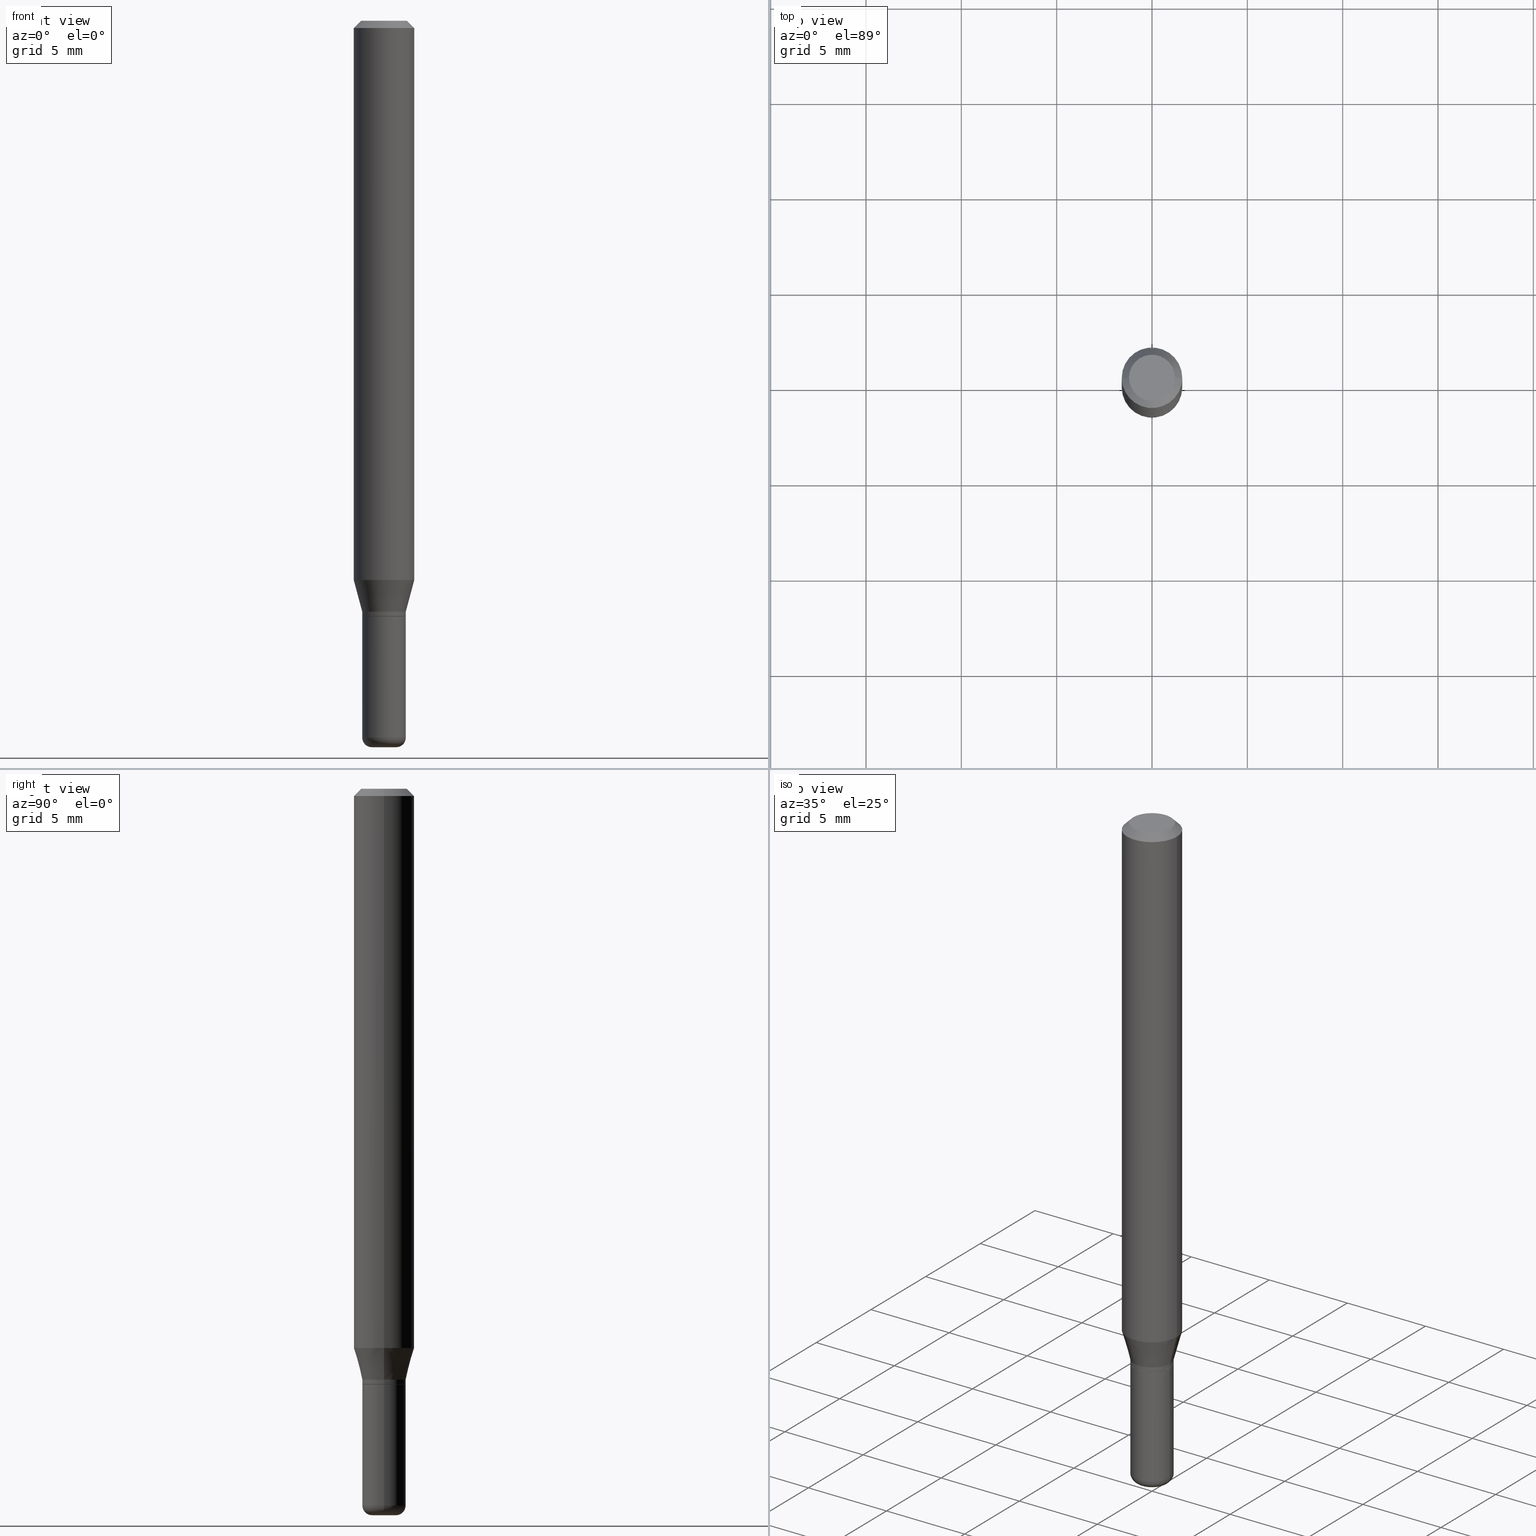
[diagram: canonical four-view strip — front | top / right | iso, engineering-drawing reading convention]
A machine part, canonical four-view strip (front | top / right | iso — engineering-drawing reading convention). The complete STEP part file that produces these views, byte-faithful:
ISO-10303-21;
HEADER;
FILE_DESCRIPTION (( 'STEP AP203' ),
    '1' );
FILE_NAME ('08723.STEP',
    '2024-02-29T20:36:38',
    ( '' ),
    ( '' ),
    'SwSTEP 2.0',
    'SolidWorks 2023',
    '' );
FILE_SCHEMA (( 'CONFIG_CONTROL_DESIGN' ));
ENDSEC;

DATA;
#1 = ORIENTED_EDGE ( 'NONE', *, *, #268, .T. ) ;
#2 = DIRECTION ( 'NONE',  ( 1.000000000000000000, -6.982962677686263555E-15, 0.000000000000000000 ) ) ;
#3 = DIRECTION ( 'NONE',  ( -2.445468806185136597E-29, 3.491481338843145583E-15, 1.000000000000000000 ) ) ;
#4 = EDGE_LOOP ( 'NONE', ( #180, #140, #331, #493 ) ) ;
#5 = CIRCLE ( 'NONE', #36, 0.02000000000000003511 ) ;
#6 = DIRECTION ( 'NONE',  ( -0.7071067811865479058, 2.468850131082261005E-15, -0.7071067811865471286 ) ) ;
#7 = AXIS2_PLACEMENT_3D ( 'NONE', #65, #295, #338 ) ;
#8 = EDGE_CURVE ( 'NONE', #347, #497, #459, .T. ) ;
#9 = EDGE_LOOP ( 'NONE', ( #74, #271 ) ) ;
#10 = CARTESIAN_POINT ( 'NONE',  ( 0.000000000000000000, 0.000000000000000000, 0.000000000000000000 ) ) ;
#11 = ORIENTED_EDGE ( 'NONE', *, *, #464, .F. ) ;
#12 = FACE_OUTER_BOUND ( 'NONE', #324, .T. ) ;
#13 = CARTESIAN_POINT ( 'NONE',  ( 2.823756201468231071E-29, -4.031575482759416467E-15, -1.154689110867544777 ) ) ;
#14 = CIRCLE ( 'NONE', #77, 0.04750000000000000749 ) ;
#15 = DIRECTION ( 'NONE',  ( -2.438088387897960049E-29, 3.491481338843145188E-15, 1.000000000000000000 ) ) ;
#16 = DIRECTION ( 'NONE',  ( 1.000000000000000000, -6.982962677686276177E-15, 0.000000000000000000 ) ) ;
#17 = ORIENTED_EDGE ( 'NONE', *, *, #371, .T. ) ;
#18 = LINE ( 'NONE', #21, #221 ) ;
#19 = VECTOR ( 'NONE', #89, 39.37007874015748143 ) ;
#20 = DIRECTION ( 'NONE',  ( -0.7071067811864267805, 7.493145998869918709E-15, 0.7071067811866682540 ) ) ;
#21 = CARTESIAN_POINT ( 'NONE',  ( -0.06250000000000000000, 4.440892098500626162E-16, -3.074334431409316114E-30 ) ) ;
#22 = EDGE_CURVE ( 'NONE', #23, #188, #319, .T. ) ;
#23 = VERTEX_POINT ( 'NONE', #480 ) ;
#24 = DIRECTION ( 'NONE',  ( 0.000000000000000000, 0.000000000000000000, 1.000000000000000000 ) ) ;
#25 = AXIS2_PLACEMENT_3D ( 'NONE', #273, #265, #429 ) ;
#26 = VECTOR ( 'NONE', #132, 39.37007874015748143 ) ;
#27 = PERSON_AND_ORGANIZATION ( #299, #396 ) ;
#28 = LINE ( 'NONE', #469, #150 ) ;
#29 = ADVANCED_FACE ( 'NONE', ( #125 ), #304, .T. ) ;
#30 = PERSON_AND_ORGANIZATION ( #299, #396 ) ;
#31 = DIRECTION ( 'NONE',  ( 1.000000000000000000, -6.982962677686267499E-15, 4.876176775795935793E-29 ) ) ;
#32 = EDGE_CURVE ( 'NONE', #60, #497, #388, .T. ) ;
#33 = EDGE_LOOP ( 'NONE', ( #102, #239, #453, #138 ) ) ;
#34 = APPROVAL_ROLE ( '' ) ;
#35 = CARTESIAN_POINT ( 'NONE',  ( 3.007926631607718216E-29, -4.294522046777069173E-15, -1.230000000000000204 ) ) ;
#36 = AXIS2_PLACEMENT_3D ( 'NONE', #39, #473, #68 ) ;
#37 = PERSON_AND_ORGANIZATION_ROLE ( 'design_owner' ) ;
#38 = VECTOR ( 'NONE', #6, 39.37007874015748143 ) ;
#39 = CARTESIAN_POINT ( 'NONE',  ( 0.02499999999999999792, -5.341966448430011546E-15, -1.479999999999999982 ) ) ;
#40 = DIRECTION ( 'NONE',  ( -2.445468806185136597E-29, 3.491481338843145583E-15, 1.000000000000000000 ) ) ;
#41 = ORIENTED_EDGE ( 'NONE', *, *, #86, .F. ) ;
#42 = FACE_OUTER_BOUND ( 'NONE', #402, .T. ) ;
#43 = EDGE_CURVE ( 'NONE', #470, #243, #5, .T. ) ;
#44 = VERTEX_POINT ( 'NONE', #76 ) ;
#45 = ORIENTED_EDGE ( 'NONE', *, *, #279, .F. ) ;
#46 = CIRCLE ( 'NONE', #220, 0.04499999999999999833 ) ;
#47 = DIRECTION ( 'NONE',  ( 1.000000000000000000, -6.982962677686262766E-15, 0.000000000000000000 ) ) ;
#48 = CIRCLE ( 'NONE', #139, 0.06250000000000000000 ) ;
#49 =( GEOMETRIC_REPRESENTATION_CONTEXT ( 3 ) GLOBAL_UNCERTAINTY_ASSIGNED_CONTEXT ( ( #500 ) ) GLOBAL_UNIT_ASSIGNED_CONTEXT ( ( #462, #196, #67 ) ) REPRESENTATION_CONTEXT ( 'NONE', 'WORKASPACE' ) );
#50 = EDGE_LOOP ( 'NONE', ( #476, #118, #17, #241 ) ) ;
#51 = CC_DESIGN_PERSON_AND_ORGANIZATION_ASSIGNMENT ( #70, #72, ( #517 ) ) ;
#52 = CARTESIAN_POINT ( 'NONE',  ( 3.668203209277632395E-31, -5.237222008264614861E-17, -0.01499999999999970281 ) ) ;
#53 = CARTESIAN_POINT ( 'NONE',  ( 0.04500000000000003303, -5.481625701983737354E-15, -1.479999999999999982 ) ) ;
#54 = DIRECTION ( 'NONE',  ( -2.445468806185136597E-29, 3.491481338843145583E-15, 1.000000000000000000 ) ) ;
#55 = AXIS2_PLACEMENT_3D ( 'NONE', #339, #492, #104 ) ;
#56 = APPROVAL_PERSON_ORGANIZATION ( #190, #450, #113 ) ;
#57 = CARTESIAN_POINT ( 'NONE',  ( 2.983471943545866670E-29, -4.259607233388637524E-15, -1.220000000000000195 ) ) ;
#58 = EDGE_LOOP ( 'NONE', ( #485, #475, #84, #230 ) ) ;
#59 = DIRECTION ( 'NONE',  ( 0.2588190451025206285, 1.565188264969627095E-15, 0.9659258262890682012 ) ) ;
#60 = VERTEX_POINT ( 'NONE', #226 ) ;
#61 = LENGTH_MEASURE_WITH_UNIT ( LENGTH_MEASURE( 0.02539999999999999897 ), #496 );
#62 = CONICAL_SURFACE ( 'NONE', #177, 0.04499999999999999833, 0.2617993877991493523 ) ;
#63 = CARTESIAN_POINT ( 'NONE',  ( 3.668203209277632395E-31, -5.237222008264614861E-17, -0.01499999999999970281 ) ) ;
#64 = EDGE_CURVE ( 'NONE', #79, #192, #28, .T. ) ;
#65 = CARTESIAN_POINT ( 'NONE',  ( 3.668203209277632395E-31, -5.237222008264614861E-17, -0.01499999999999970281 ) ) ;
#66 = ORIENTED_EDGE ( 'NONE', *, *, #64, .F. ) ;
#67 =( NAMED_UNIT ( * ) SI_UNIT ( $, .STERADIAN. ) SOLID_ANGLE_UNIT ( ) );
#68 = DIRECTION ( 'NONE',  ( 1.000000000000000000, -6.982962677686272233E-15, 0.000000000000000000 ) ) ;
#69 = AXIS2_PLACEMENT_3D ( 'NONE', #422, #447, #411 ) ;
#70 = PERSON_AND_ORGANIZATION ( #299, #396 ) ;
#71 = CARTESIAN_POINT ( 'NONE',  ( 3.006703897204625414E-29, -4.292776306107646881E-15, -1.229500000000000037 ) ) ;
#72 = PERSON_AND_ORGANIZATION_ROLE ( 'design_supplier' ) ;
#73 = CARTESIAN_POINT ( 'NONE',  ( 3.007926631607718216E-29, -4.294522046777069173E-15, -1.230000000000000204 ) ) ;
#74 = ORIENTED_EDGE ( 'NONE', *, *, #202, .T. ) ;
#75 = VERTEX_POINT ( 'NONE', #397 ) ;
#76 = CARTESIAN_POINT ( 'NONE',  ( -0.04500000000000001221, -3.973032075015602302E-15, -1.229500000000000037 ) ) ;
#77 = AXIS2_PLACEMENT_3D ( 'NONE', #96, #446, #87 ) ;
#78 = ORIENTED_EDGE ( 'NONE', *, *, #296, .F. ) ;
#79 = VERTEX_POINT ( 'NONE', #314 ) ;
#80 = PERSON_AND_ORGANIZATION_ROLE ( 'classification_officer' ) ;
#81 = EDGE_CURVE ( 'NONE', #303, #192, #46, .T. ) ;
#82 = DIRECTION ( 'NONE',  ( -2.445468806185136597E-29, 3.491481338843145583E-15, 1.000000000000000000 ) ) ;
#83 = APPLICATION_CONTEXT ( 'configuration controlled 3d designs of mechanical parts and assemblies' ) ;
#84 = ORIENTED_EDGE ( 'NONE', *, *, #172, .F. ) ;
#85 = ORIENTED_EDGE ( 'NONE', *, *, #32, .T. ) ;
#86 = EDGE_CURVE ( 'NONE', #369, #188, #292, .T. ) ;
#87 = DIRECTION ( 'NONE',  ( 1.000000000000000000, -6.982962677686266711E-15, 4.852736867747365086E-29 ) ) ;
#88 = EDGE_LOOP ( 'NONE', ( #103, #214, #318, #41 ) ) ;
#89 = DIRECTION ( 'NONE',  ( -2.445468806185136877E-29, 3.491481338843145188E-15, 1.000000000000000000 ) ) ;
#90 = CC_DESIGN_PERSON_AND_ORGANIZATION_ASSIGNMENT ( #115, #425, ( #517 ) ) ;
#91 = ORIENTED_EDGE ( 'NONE', *, *, #101, .T. ) ;
#92 = DIMENSIONAL_EXPONENTS ( 1.000000000000000000, 0.000000000000000000, 0.000000000000000000, 0.000000000000000000, 0.000000000000000000, 0.000000000000000000, 0.000000000000000000 ) ;
#93 = CARTESIAN_POINT ( 'NONE',  ( 3.668203209277704895E-29, -5.237222008264718177E-15, -1.500000000000000222 ) ) ;
#94 = AXIS2_PLACEMENT_3D ( 'NONE', #374, #301, #380 ) ;
#95 = ADVANCED_FACE ( 'NONE', ( #187 ), #350, .T. ) ;
#96 = CARTESIAN_POINT ( 'NONE',  ( -6.680649051745406845E-45, 9.538196290434862081E-31, 2.731847993664263218E-16 ) ) ;
#97 = DIRECTION ( 'NONE',  ( 1.000000000000000000, -6.982962677686266711E-15, 0.000000000000000000 ) ) ;
#98 = FACE_OUTER_BOUND ( 'NONE', #123, .T. ) ;
#99 = AXIS2_PLACEMENT_3D ( 'NONE', #277, #199, #189 ) ;
#100 = DIRECTION ( 'NONE',  ( -2.445468806185136877E-29, 3.491481338843145188E-15, 1.000000000000000000 ) ) ;
#101 = EDGE_CURVE ( 'NONE', #79, #243, #300, .T. ) ;
#102 = ORIENTED_EDGE ( 'NONE', *, *, #263, .F. ) ;
#103 = ORIENTED_EDGE ( 'NONE', *, *, #174, .F. ) ;
#104 = DIRECTION ( 'NONE',  ( 1.000000000000000000, -6.982962677686267499E-15, 4.876176775795935793E-29 ) ) ;
#105 = AXIS2_PLACEMENT_3D ( 'NONE', #481, #407, #283 ) ;
#106 = ADVANCED_FACE ( 'NONE', ( #355 ), #359, .F. ) ;
#107 = CARTESIAN_POINT ( 'NONE',  ( 3.007926631607718216E-29, -4.294522046777069173E-15, -1.230000000000000204 ) ) ;
#108 = CARTESIAN_POINT ( 'NONE',  ( 0.06250000000000000000, -4.811533449433669144E-16, -0.01499999999999970281 ) ) ;
#109 = SECURITY_CLASSIFICATION_LEVEL ( 'unclassified' ) ;
#110 = DIRECTION ( 'NONE',  ( -2.438088387897960049E-29, 3.491481338843145188E-15, 1.000000000000000000 ) ) ;
#111 = DIRECTION ( 'NONE',  ( -2.445468806185136597E-29, 3.491481338843145583E-15, 1.000000000000000000 ) ) ;
#112 = CC_DESIGN_APPROVAL ( #364, ( #458 ) ) ;
#113 = APPROVAL_ROLE ( '' ) ;
#114 = CYLINDRICAL_SURFACE ( 'NONE', #321, 0.04500000000000001221 ) ;
#115 = PERSON_AND_ORGANIZATION ( #299, #396 ) ;
#116 = MANIFOLD_SOLID_BREP ( 'Body-Move/Copy2[1]', #356 ) ;
#117 = CARTESIAN_POINT ( 'NONE',  ( 3.582686580359766038E-29, -5.359686688179453325E-15, -1.500000000000000222 ) ) ;
#118 = ORIENTED_EDGE ( 'NONE', *, *, #8, .T. ) ;
#119 = DATE_TIME_ROLE ( 'creation_date' ) ;
#120 = DIRECTION ( 'NONE',  ( 1.000000000000000000, -6.982962677686276177E-15, 0.000000000000000000 ) ) ;
#121 = CIRCLE ( 'NONE', #99, 0.04500000000000001221 ) ;
#122 = VECTOR ( 'NONE', #193, 39.37007874015748143 ) ;
#123 = EDGE_LOOP ( 'NONE', ( #358, #204, #325, #206 ) ) ;
#124 = VERTEX_POINT ( 'NONE', #361 ) ;
#125 = FACE_OUTER_BOUND ( 'NONE', #489, .T. ) ;
#126 = LOCAL_TIME ( 15, 36, 38.00000000000000000, #231 ) ;
#127 = LINE ( 'NONE', #444, #19 ) ;
#128 = ADVANCED_FACE ( 'NONE', ( #436 ), #409, .T. ) ;
#129 = CARTESIAN_POINT ( 'NONE',  ( 2.983471943545866670E-29, -4.259607233388637524E-15, -1.220000000000000195 ) ) ;
#130 = CARTESIAN_POINT ( 'NONE',  ( -0.04499999999999999833, -3.763674637602973398E-15, -1.220000000000000195 ) ) ;
#131 = ADVANCED_FACE ( 'NONE', ( #508 ), #250, .T. ) ;
#132 = DIRECTION ( 'NONE',  ( 0.7071067811864267805, -2.468850131080992517E-15, 0.7071067811866682540 ) ) ;
#133 = CONICAL_SURFACE ( 'NONE', #7, 0.06250000000000000000, 0.7853981633974488341 ) ;
#134 = CARTESIAN_POINT ( 'NONE',  ( -0.02500000000000000139, -4.953617237360251242E-15, -1.500000000000000222 ) ) ;
#135 = DIRECTION ( 'NONE',  ( 1.000000000000000000, -6.982962677686266711E-15, 4.852736867747365086E-29 ) ) ;
#136 = CARTESIAN_POINT ( 'NONE',  ( 0.06250000000000000000, -4.888073874380378612E-16, -0.01499999999999970281 ) ) ;
#137 = AXIS2_PLACEMENT_3D ( 'NONE', #478, #198, #234 ) ;
#138 = ORIENTED_EDGE ( 'NONE', *, *, #101, .F. ) ;
#139 = AXIS2_PLACEMENT_3D ( 'NONE', #328, #289, #97 ) ;
#140 = ORIENTED_EDGE ( 'NONE', *, *, #207, .T. ) ;
#141 = DIRECTION ( 'NONE',  ( -2.445468806185136597E-29, 3.491481338843145583E-15, 1.000000000000000000 ) ) ;
#142 = CARTESIAN_POINT ( 'NONE',  ( 3.007926631607718216E-29, -4.294522046777069173E-15, -1.230000000000000204 ) ) ;
#143 = VERTEX_POINT ( 'NONE', #147 ) ;
#144 = CIRCLE ( 'NONE', #377, 0.06250000000000000000 ) ;
#145 = CALENDAR_DATE ( 2024, 29, 2 ) ;
#146 = CALENDAR_DATE ( 2024, 29, 2 ) ;
#147 = CARTESIAN_POINT ( 'NONE',  ( -0.04450000000000001177, -3.975681302189713503E-15, -1.230000000000000204 ) ) ;
#148 = CALENDAR_DATE ( 2024, 29, 2 ) ;
#149 = DIRECTION ( 'NONE',  ( 1.000000000000000000, -6.982962677686269077E-15, 0.000000000000000000 ) ) ;
#150 = VECTOR ( 'NONE', #394, 39.37007874015748143 ) ;
#151 = AXIS2_PLACEMENT_3D ( 'NONE', #107, #260, #16 ) ;
#152 = CC_DESIGN_APPROVAL ( #155, ( #346 ) ) ;
#153 = CALENDAR_DATE ( 2024, 29, 2 ) ;
#154 = DIRECTION ( 'NONE',  ( -2.445468806185136597E-29, 3.491481338843145583E-15, 1.000000000000000000 ) ) ;
#155 = APPROVAL ( #315, 'UNSPECIFIED' ) ;
#156 = PERSON_AND_ORGANIZATION ( #299, #396 ) ;
#157 = DIRECTION ( 'NONE',  ( -2.445468806185136597E-29, 3.491481338843145583E-15, 1.000000000000000000 ) ) ;
#158 = ADVANCED_FACE ( 'NONE', ( #467 ), #114, .T. ) ;
#159 = ORIENTED_EDGE ( 'NONE', *, *, #248, .T. ) ;
#160 = PLANE ( 'NONE',  #368 ) ;
#161 = ORIENTED_EDGE ( 'NONE', *, *, #510, .T. ) ;
#162 = AXIS2_PLACEMENT_3D ( 'NONE', #71, #3, #424 ) ;
#163 = AXIS2_PLACEMENT_3D ( 'NONE', #216, #173, #455 ) ;
#164 = DIRECTION ( 'NONE',  ( 2.438088387897960049E-29, -3.491481338843145188E-15, -1.000000000000000000 ) ) ;
#165 = EDGE_CURVE ( 'NONE', #44, #23, #121, .T. ) ;
#166 = DIRECTION ( 'NONE',  ( -2.445468806185136597E-29, 3.491481338843145583E-15, 1.000000000000000000 ) ) ;
#167 = CARTESIAN_POINT ( 'NONE',  ( 0.04750000000000000749, -4.035134999187568762E-16, 2.731847993664288856E-16 ) ) ;
#168 = AXIS2_PLACEMENT_3D ( 'NONE', #309, #111, #385 ) ;
#169 = DIRECTION ( 'NONE',  ( 1.000000000000000000, -6.982962677686276177E-15, 0.000000000000000000 ) ) ;
#170 = CIRCLE ( 'NONE', #516, 0.04499999999999999833 ) ;
#171 = CC_DESIGN_APPROVAL ( #450, ( #517 ) ) ;
#172 = EDGE_CURVE ( 'NONE', #23, #44, #382, .T. ) ;
#173 = DIRECTION ( 'NONE',  ( -2.445468806185136597E-29, 3.491481338843145583E-15, 1.000000000000000000 ) ) ;
#174 = EDGE_CURVE ( 'NONE', #44, #369, #272, .T. ) ;
#175 = FACE_OUTER_BOUND ( 'NONE', #326, .T. ) ;
#176 = PRODUCT_RELATED_PRODUCT_CATEGORY ( 'detail', '', ( #235 ) ) ;
#177 = AXIS2_PLACEMENT_3D ( 'NONE', #57, #141, #223 ) ;
#178 = ADVANCED_FACE ( 'NONE', ( #353 ), #236, .T. ) ;
#179 = FACE_OUTER_BOUND ( 'NONE', #479, .T. ) ;
#180 = ORIENTED_EDGE ( 'NONE', *, *, #341, .T. ) ;
#181 = ADVANCED_BREP_SHAPE_REPRESENTATION ( '08723', ( #116, #274, #357 ), #49 ) ;
#182 = ORIENTED_EDGE ( 'NONE', *, *, #412, .F. ) ;
#183 = CALENDAR_DATE ( 2024, 29, 2 ) ;
#184 = AXIS2_PLACEMENT_3D ( 'NONE', #35, #316, #120 ) ;
#185 = TOROIDAL_SURFACE ( 'NONE', #94, 0.02499999999999999792, 0.02000000000000003164 ) ;
#186 = APPROVAL_STATUS ( 'not_yet_approved' ) ;
#187 = FACE_OUTER_BOUND ( 'NONE', #379, .T. ) ;
#188 = VERTEX_POINT ( 'NONE', #311 ) ;
#189 = DIRECTION ( 'NONE',  ( 1.000000000000000000, -6.982962677686266711E-15, 0.000000000000000000 ) ) ;
#190 = PERSON_AND_ORGANIZATION ( #299, #396 ) ;
#191 = CC_DESIGN_PERSON_AND_ORGANIZATION_ASSIGNMENT ( #30, #37, ( #235 ) ) ;
#192 = VERTEX_POINT ( 'NONE', #518 ) ;
#193 = DIRECTION ( 'NONE',  ( -2.445468806185136877E-29, 3.491481338843145188E-15, 1.000000000000000000 ) ) ;
#194 = CIRCLE ( 'NONE', #151, 0.04450000000000001177 ) ;
#195 = ORIENTED_EDGE ( 'NONE', *, *, #371, .F. ) ;
#196 =( NAMED_UNIT ( * ) PLANE_ANGLE_UNIT ( ) SI_UNIT ( $, .RADIAN. ) );
#197 = EDGE_CURVE ( 'NONE', #192, #303, #334, .T. ) ;
#198 = DIRECTION ( 'NONE',  ( -2.445468806185136597E-29, 3.491481338843145583E-15, 1.000000000000000000 ) ) ;
#199 = DIRECTION ( 'NONE',  ( -2.445468806185136597E-29, 3.491481338843145583E-15, 1.000000000000000000 ) ) ;
#200 = EDGE_LOOP ( 'NONE', ( #335, #297, #253, #435 ) ) ;
#201 = CARTESIAN_POINT ( 'NONE',  ( -0.02499999999999999792, -4.989756697547830463E-15, -1.479999999999999982 ) ) ;
#202 = EDGE_CURVE ( 'NONE', #75, #347, #14, .T. ) ;
#203 = AXIS2_PLACEMENT_3D ( 'NONE', #201, #443, #332 ) ;
#204 = ORIENTED_EDGE ( 'NONE', *, *, #86, .T. ) ;
#205 = FACE_OUTER_BOUND ( 'NONE', #200, .T. ) ;
#206 = ORIENTED_EDGE ( 'NONE', *, *, #248, .F. ) ;
#207 = EDGE_CURVE ( 'NONE', #369, #501, #284, .T. ) ;
#208 = DIRECTION ( 'NONE',  ( -2.445468806185136597E-29, 3.491481338843145583E-15, 1.000000000000000000 ) ) ;
#209 = DIRECTION ( 'NONE',  ( 1.000000000000000000, -6.982962677686269077E-15, 0.000000000000000000 ) ) ;
#210 = VECTOR ( 'NONE', #440, 39.37007874015748143 ) ;
#211 = CIRCLE ( 'NONE', #312, 0.04750000000000000749 ) ;
#212 = LINE ( 'NONE', #280, #38 ) ;
#213 = LINE ( 'NONE', #219, #258 ) ;
#214 = ORIENTED_EDGE ( 'NONE', *, *, #165, .T. ) ;
#215 = EDGE_CURVE ( 'NONE', #75, #124, #212, .T. ) ;
#216 = CARTESIAN_POINT ( 'NONE',  ( 3.668203209277704895E-29, -5.237222008264718177E-15, -1.500000000000000222 ) ) ;
#217 = VERTEX_POINT ( 'NONE', #134 ) ;
#218 = ADVANCED_FACE ( 'NONE', ( #370 ), #246, .F. ) ;
#219 = CARTESIAN_POINT ( 'NONE',  ( -0.04450000000000001177, -3.978330529363824704E-15, -1.230000000000000204 ) ) ;
#220 = AXIS2_PLACEMENT_3D ( 'NONE', #438, #82, #232 ) ;
#221 = VECTOR ( 'NONE', #100, 39.37007874015748143 ) ;
#222 = FACE_OUTER_BOUND ( 'NONE', #33, .T. ) ;
#223 = DIRECTION ( 'NONE',  ( 1.000000000000000000, -6.982962677686269077E-15, 0.000000000000000000 ) ) ;
#224 = DESIGN_CONTEXT ( 'detailed design', #330, 'design' ) ;
#225 = APPLICATION_PROTOCOL_DEFINITION ( 'international standard', 'config_control_design', 1994, #330 ) ;
#226 = CARTESIAN_POINT ( 'NONE',  ( 0.06250000000000000000, -4.468010650114807348E-15, -1.154689110867544777 ) ) ;
#227 = ADVANCED_FACE ( 'NONE', ( #42 ), #160, .F. ) ;
#228 = AXIS2_PLACEMENT_3D ( 'NONE', #52, #208, #366 ) ;
#229 = CARTESIAN_POINT ( 'NONE',  ( 2.983471943545866670E-29, -4.259607233388637524E-15, -1.220000000000000195 ) ) ;
#230 = ORIENTED_EDGE ( 'NONE', *, *, #333, .F. ) ;
#231 = COORDINATED_UNIVERSAL_TIME_OFFSET ( 5, 0, .BEHIND. ) ;
#232 = DIRECTION ( 'NONE',  ( 1.000000000000000000, -6.982962677686269077E-15, 0.000000000000000000 ) ) ;
#233 = ORIENTED_EDGE ( 'NONE', *, *, #268, .F. ) ;
#234 = DIRECTION ( 'NONE',  ( 1.000000000000000000, -6.982962677686267499E-15, 4.876176775795935793E-29 ) ) ;
#235 = PRODUCT ( '08723', '08723', '', ( #509 ) ) ;
#236 = CONICAL_SURFACE ( 'NONE', #244, 0.04499999999999999833, 0.2617993877991493523 ) ;
#237 = ORIENTED_EDGE ( 'NONE', *, *, #415, .F. ) ;
#238 = CARTESIAN_POINT ( 'NONE',  ( 0.000000000000000000, 0.000000000000000000, 0.000000000000000000 ) ) ;
#239 = ORIENTED_EDGE ( 'NONE', *, *, #296, .T. ) ;
#240 = DIRECTION ( 'NONE',  ( -2.445468806185136597E-29, 3.491481338843145583E-15, 1.000000000000000000 ) ) ;
#241 = ORIENTED_EDGE ( 'NONE', *, *, #215, .F. ) ;
#242 = DIRECTION ( 'NONE',  ( 1.000000000000000000, -6.982962677686269077E-15, 0.000000000000000000 ) ) ;
#243 = VERTEX_POINT ( 'NONE', #53 ) ;
#244 = AXIS2_PLACEMENT_3D ( 'NONE', #229, #512, #149 ) ;
#245 = CARTESIAN_POINT ( 'NONE',  ( 0.04499999999999999833, -4.608755367272951648E-15, -1.230000000000000204 ) ) ;
#246 = PLANE ( 'NONE',  #105 ) ;
#247 = VERTEX_POINT ( 'NONE', #367 ) ;
#248 = EDGE_CURVE ( 'NONE', #501, #60, #144, .T. ) ;
#249 = DIRECTION ( 'NONE',  ( -0.2588190451025206285, 5.211531920934544731E-15, 0.9659258262890682012 ) ) ;
#250 = CONICAL_SURFACE ( 'NONE', #25, 0.04450000000000001177, 0.7853981633972775267 ) ;
#251 = AXIS2_PLACEMENT_3D ( 'NONE', #484, #54, #362 ) ;
#252 = CYLINDRICAL_SURFACE ( 'NONE', #55, 0.04500000000000000527 ) ;
#253 = ORIENTED_EDGE ( 'NONE', *, *, #341, .F. ) ;
#254 = DIRECTION ( 'NONE',  ( -2.445468806185136597E-29, 3.491481338843145583E-15, 1.000000000000000000 ) ) ;
#255 = ORIENTED_EDGE ( 'NONE', *, *, #333, .T. ) ;
#256 = DIRECTION ( 'NONE',  ( -2.445468806185136597E-29, 3.491481338843145583E-15, 1.000000000000000000 ) ) ;
#257 = VECTOR ( 'NONE', #327, 39.37007874015748143 ) ;
#258 = VECTOR ( 'NONE', #20, 39.37007874015748143 ) ;
#259 = LOCAL_TIME ( 15, 36, 38.00000000000000000, #351 ) ;
#260 = DIRECTION ( 'NONE',  ( -2.445468806185136597E-29, 3.491481338843145583E-15, 1.000000000000000000 ) ) ;
#261 = ORIENTED_EDGE ( 'NONE', *, *, #64, .T. ) ;
#262 = DIRECTION ( 'NONE',  ( -2.445468806185136597E-29, 3.491481338843145583E-15, 1.000000000000000000 ) ) ;
#263 = EDGE_CURVE ( 'NONE', #217, #79, #395, .T. ) ;
#264 = DATE_AND_TIME ( #145, #344 ) ;
#265 = DIRECTION ( 'NONE',  ( -2.445468806185136597E-29, 3.491481338843145583E-15, 1.000000000000000000 ) ) ;
#266 = DIRECTION ( 'NONE',  ( 1.000000000000000000, -6.982962677686265922E-15, 4.876176775795935793E-29 ) ) ;
#267 = CC_DESIGN_DATE_AND_TIME_ASSIGNMENT ( #264, #383, ( #458 ) ) ;
#268 = EDGE_CURVE ( 'NONE', #124, #497, #48, .T. ) ;
#269 = AXIS2_PLACEMENT_3D ( 'NONE', #345, #378, #343 ) ;
#270 = COORDINATED_UNIVERSAL_TIME_OFFSET ( 5, 0, .BEHIND. ) ;
#271 = ORIENTED_EDGE ( 'NONE', *, *, #389, .T. ) ;
#272 = LINE ( 'NONE', #433, #122 ) ;
#273 = CARTESIAN_POINT ( 'NONE',  ( 3.007926631607718216E-29, -4.294522046777069173E-15, -1.230000000000000204 ) ) ;
#274 = MANIFOLD_SOLID_BREP ( 'Body-Move/Copy2[2]', #376 ) ;
#275 = APPROVAL_STATUS ( 'not_yet_approved' ) ;
#276 = ORIENTED_EDGE ( 'NONE', *, *, #282, .T. ) ;
#277 = CARTESIAN_POINT ( 'NONE',  ( 3.006703897204625414E-29, -4.292776306107646881E-15, -1.229500000000000037 ) ) ;
#278 = CIRCLE ( 'NONE', #228, 0.06250000000000000000 ) ;
#279 = EDGE_CURVE ( 'NONE', #243, #303, #127, .T. ) ;
#280 = CARTESIAN_POINT ( 'NONE',  ( -0.06250000000000000000, 3.840629472727455270E-16, -0.01499999999999970281 ) ) ;
#281 = CARTESIAN_POINT ( 'NONE',  ( 0.04500000000000000527, -3.142333204958820809E-16, 2.194279549108171317E-30 ) ) ;
#282 = EDGE_CURVE ( 'NONE', #143, #247, #404, .T. ) ;
#283 = DIRECTION ( 'NONE',  ( -1.000000000000000000, 6.982962677686265922E-15, -4.876176775795935793E-29 ) ) ;
#284 = LINE ( 'NONE', #320, #302 ) ;
#285 = AXIS2_PLACEMENT_3D ( 'NONE', #117, #110, #266 ) ;
#286 = AXIS2_PLACEMENT_3D ( 'NONE', #452, #254, #499 ) ;
#287 = APPROVAL_PERSON_ORGANIZATION ( #156, #155, #34 ) ;
#288 = DIRECTION ( 'NONE',  ( -1.000000000000000000, 6.982962677686265922E-15, -4.876176775795935793E-29 ) ) ;
#289 = DIRECTION ( 'NONE',  ( -2.445468806185136597E-29, 3.491481338843145583E-15, 1.000000000000000000 ) ) ;
#290 = CC_DESIGN_PERSON_AND_ORGANIZATION_ASSIGNMENT ( #423, #80, ( #458 ) ) ;
#291 = CARTESIAN_POINT ( 'NONE',  ( -6.680649051745406845E-45, 9.538196290434862081E-31, 2.731847993664263218E-16 ) ) ;
#292 = CIRCLE ( 'NONE', #168, 0.04499999999999999833 ) ;
#293 = AXIS2_PLACEMENT_3D ( 'NONE', #63, #421, #491 ) ;
#294 = CARTESIAN_POINT ( 'NONE',  ( -0.06250000000000000000, -3.587486272909353851E-15, -1.154689110867544777 ) ) ;
#295 = DIRECTION ( 'NONE',  ( 2.445468806185136597E-29, -3.491481338843145583E-15, -1.000000000000000000 ) ) ;
#296 = EDGE_CURVE ( 'NONE', #217, #470, #363, .T. ) ;
#297 = ORIENTED_EDGE ( 'NONE', *, *, #174, .T. ) ;
#298 = FACE_OUTER_BOUND ( 'NONE', #88, .T. ) ;
#299 = PERSON ( 'UNSPECIFIED', 'UNSPECIFIED', 'UNSPECIFIED', ('UNSPECIFIED'), ('UNSPECIFIED'), ('UNSPECIFIED') ) ;
#300 = CIRCLE ( 'NONE', #513, 0.04500000000000003303 ) ;
#301 = DIRECTION ( 'NONE',  ( -2.445468806185136597E-29, 3.491481338843145583E-15, 1.000000000000000000 ) ) ;
#302 = VECTOR ( 'NONE', #249, 39.37007874015748854 ) ;
#303 = VERTEX_POINT ( 'NONE', #245 ) ;
#304 = CYLINDRICAL_SURFACE ( 'NONE', #487, 0.06250000000000000000 ) ;
#305 = COORDINATED_UNIVERSAL_TIME_OFFSET ( 5, 0, .BEHIND. ) ;
#306 = CARTESIAN_POINT ( 'NONE',  ( 0.06250000000000000000, -4.364351673553916694E-16, 3.047610484872459871E-30 ) ) ;
#307 = DATE_AND_TIME ( #146, #126 ) ;
#308 = ORIENTED_EDGE ( 'NONE', *, *, #81, .F. ) ;
#309 = CARTESIAN_POINT ( 'NONE',  ( 2.983471943545866670E-29, -4.259607233388637524E-15, -1.220000000000000195 ) ) ;
#310 = DATE_AND_TIME ( #148, #259 ) ;
#311 = CARTESIAN_POINT ( 'NONE',  ( 0.04499999999999999833, -4.573840553884519999E-15, -1.220000000000000195 ) ) ;
#312 = AXIS2_PLACEMENT_3D ( 'NONE', #291, #256, #135 ) ;
#313 = ORIENTED_EDGE ( 'NONE', *, *, #279, .T. ) ;
#314 = CARTESIAN_POINT ( 'NONE',  ( -0.04500000000000003303, -4.411212983040417053E-15, -1.479999999999999982 ) ) ;
#315 = APPROVAL_STATUS ( 'not_yet_approved' ) ;
#316 = DIRECTION ( 'NONE',  ( -2.445468806185136597E-29, 3.491481338843145583E-15, 1.000000000000000000 ) ) ;
#317 = ORIENTED_EDGE ( 'NONE', *, *, #81, .T. ) ;
#318 = ORIENTED_EDGE ( 'NONE', *, *, #22, .T. ) ;
#319 = LINE ( 'NONE', #281, #210 ) ;
#320 = CARTESIAN_POINT ( 'NONE',  ( -0.04499999999999999833, -3.939863002296592945E-15, -1.220000000000000195 ) ) ;
#321 = AXIS2_PLACEMENT_3D ( 'NONE', #238, #40, #31 ) ;
#322 = CONICAL_SURFACE ( 'NONE', #293, 0.06250000000000000000, 0.7853981633974488341 ) ;
#323 = ADVANCED_FACE ( 'NONE', ( #400 ), #486, .T. ) ;
#324 = EDGE_LOOP ( 'NONE', ( #505, #405, #399, #1 ) ) ;
#325 = ORIENTED_EDGE ( 'NONE', *, *, #474, .T. ) ;
#326 = EDGE_LOOP ( 'NONE', ( #375, #472, #11, #352 ) ) ;
#327 = DIRECTION ( 'NONE',  ( 0.7071067811865479058, -7.319954787623257623E-15, -0.7071067811865471286 ) ) ;
#328 = CARTESIAN_POINT ( 'NONE',  ( 3.668203209277632395E-31, -5.237222008264614861E-17, -0.01499999999999970281 ) ) ;
#329 = DIRECTION ( 'NONE',  ( 1.000000000000000000, -6.982962677686267499E-15, 4.876176775795935793E-29 ) ) ;
#330 = APPLICATION_CONTEXT ( 'configuration controlled 3d designs of mechanical parts and assemblies' ) ;
#331 = ORIENTED_EDGE ( 'NONE', *, *, #510, .F. ) ;
#332 = DIRECTION ( 'NONE',  ( -1.000000000000000000, 7.105427357601009747E-15, 0.000000000000000000 ) ) ;
#333 = EDGE_CURVE ( 'NONE', #247, #23, #490, .T. ) ;
#334 = CIRCLE ( 'NONE', #482, 0.04499999999999999833 ) ;
#335 = ORIENTED_EDGE ( 'NONE', *, *, #172, .T. ) ;
#336 = APPROVAL_PERSON_ORGANIZATION ( #27, #364, #507 ) ;
#337 = DIRECTION ( 'NONE',  ( 1.000000000000000000, -6.982962677686254878E-15, 0.000000000000000000 ) ) ;
#338 = DIRECTION ( 'NONE',  ( -1.000000000000000000, 6.982962677686266711E-15, 0.000000000000000000 ) ) ;
#339 = CARTESIAN_POINT ( 'NONE',  ( 0.000000000000000000, 0.000000000000000000, 0.000000000000000000 ) ) ;
#340 = ORIENTED_EDGE ( 'NONE', *, *, #434, .F. ) ;
#341 = EDGE_CURVE ( 'NONE', #188, #369, #170, .T. ) ;
#342 = AXIS2_PLACEMENT_3D ( 'NONE', #408, #439, #169 ) ;
#343 = DIRECTION ( 'NONE',  ( 1.000000000000000000, -6.982962677686262766E-15, 4.883557194083111780E-29 ) ) ;
#344 = LOCAL_TIME ( 15, 36, 38.00000000000000000, #504 ) ;
#345 = CARTESIAN_POINT ( 'NONE',  ( 3.619293833154002365E-29, -5.167392381487854879E-15, -1.479999999999999982 ) ) ;
#346 = PRODUCT_DEFINITION ( 'UNKNOWN', '', #517, #224 ) ;
#347 = VERTEX_POINT ( 'NONE', #167 ) ;
#348 = ADVANCED_FACE ( 'NONE', ( #205 ), #365, .T. ) ;
#349 = APPROVAL_DATE_TIME ( #471, #450 ) ;
#350 = CYLINDRICAL_SURFACE ( 'NONE', #137, 0.04500000000000001221 ) ;
#351 = COORDINATED_UNIVERSAL_TIME_OFFSET ( 5, 0, .BEHIND. ) ;
#352 = ORIENTED_EDGE ( 'NONE', *, *, #43, .F. ) ;
#353 = FACE_OUTER_BOUND ( 'NONE', #4, .T. ) ;
#354 = APPLICATION_PROTOCOL_DEFINITION ( 'international standard', 'config_control_design', 1994, #83 ) ;
#355 = FACE_OUTER_BOUND ( 'NONE', #511, .T. ) ;
#356 = CLOSED_SHELL ( 'NONE', ( #445, #158, #227, #95, #502, #106 ) ) ;
#357 = AXIS2_PLACEMENT_3D ( 'NONE', #381, #24, #515 ) ;
#358 = ORIENTED_EDGE ( 'NONE', *, *, #207, .F. ) ;
#359 = PLANE ( 'NONE',  #285 ) ;
#360 = ORIENTED_EDGE ( 'NONE', *, *, #197, .F. ) ;
#361 = CARTESIAN_POINT ( 'NONE',  ( -0.06250000000000000000, -1.597884641570968368E-15, -0.01499999999999970281 ) ) ;
#362 = DIRECTION ( 'NONE',  ( 1.000000000000000000, -6.982962677686266711E-15, 4.876176775795935793E-29 ) ) ;
#363 = CIRCLE ( 'NONE', #494, 0.02500000000000000139 ) ;
#364 = APPROVAL ( #186, 'UNSPECIFIED' ) ;
#365 = CYLINDRICAL_SURFACE ( 'NONE', #420, 0.04500000000000000527 ) ;
#366 = DIRECTION ( 'NONE',  ( 1.000000000000000000, -6.982962677686266711E-15, 0.000000000000000000 ) ) ;
#367 = CARTESIAN_POINT ( 'NONE',  ( 0.04450000000000001177, -4.605263885934108641E-15, -1.230000000000000204 ) ) ;
#368 = AXIS2_PLACEMENT_3D ( 'NONE', #403, #164, #288 ) ;
#369 = VERTEX_POINT ( 'NONE', #130 ) ;
#370 = FACE_OUTER_BOUND ( 'NONE', #9, .T. ) ;
#371 = EDGE_CURVE ( 'NONE', #497, #124, #278, .T. ) ;
#372 = PLANE ( 'NONE',  #456 ) ;
#373 = ADVANCED_FACE ( 'NONE', ( #12 ), #133, .T. ) ;
#374 = CARTESIAN_POINT ( 'NONE',  ( 3.619293833154002365E-29, -5.167392381487854879E-15, -1.479999999999999982 ) ) ;
#375 = ORIENTED_EDGE ( 'NONE', *, *, #412, .T. ) ;
#376 = CLOSED_SHELL ( 'NONE', ( #348, #131, #460, #29, #178, #386, #323, #373, #218, #430, #128, #454 ) ) ;
#377 = AXIS2_PLACEMENT_3D ( 'NONE', #13, #441, #47 ) ;
#378 = DIRECTION ( 'NONE',  ( -2.445468806185136597E-29, 3.491481338843145583E-15, 1.000000000000000000 ) ) ;
#379 = EDGE_LOOP ( 'NONE', ( #66, #91, #313, #360 ) ) ;
#380 = DIRECTION ( 'NONE',  ( 1.000000000000000000, -6.982962677686262766E-15, 4.883557194083111780E-29 ) ) ;
#381 = CARTESIAN_POINT ( 'NONE',  ( 0.000000000000000000, 0.000000000000000000, 0.000000000000000000 ) ) ;
#382 = CIRCLE ( 'NONE', #162, 0.04500000000000001221 ) ;
#383 = DATE_TIME_ROLE ( 'classification_date' ) ;
#384 = CIRCLE ( 'NONE', #163, 0.02500000000000000139 ) ;
#385 = DIRECTION ( 'NONE',  ( 1.000000000000000000, -6.982962677686269077E-15, 0.000000000000000000 ) ) ;
#386 = ADVANCED_FACE ( 'NONE', ( #98 ), #62, .T. ) ;
#387 = APPROVAL_DATE_TIME ( #437, #155 ) ;
#388 = LINE ( 'NONE', #306, #418 ) ;
#389 = EDGE_CURVE ( 'NONE', #347, #75, #211, .T. ) ;
#390 = APPROVAL_DATE_TIME ( #307, #364 ) ;
#391 = DIRECTION ( 'NONE',  ( -2.445468806185136877E-29, 3.491481338843145188E-15, 1.000000000000000000 ) ) ;
#392 = PRODUCT_DEFINITION_SHAPE ( 'NONE', 'NONE',  #346 ) ;
#393 = CC_DESIGN_DATE_AND_TIME_ASSIGNMENT ( #310, #119, ( #346 ) ) ;
#394 = DIRECTION ( 'NONE',  ( -2.445468806185136877E-29, 3.491481338843145188E-15, 1.000000000000000000 ) ) ;
#395 = CIRCLE ( 'NONE', #203, 0.02000000000000003511 ) ;
#396 = ORGANIZATION ( 'UNSPECIFIED', 'UNSPECIFIED', '' ) ;
#397 = CARTESIAN_POINT ( 'NONE',  ( -0.04750000000000000749, 3.578768372314221353E-16, 2.731847993664239060E-16 ) ) ;
#398 = ORIENTED_EDGE ( 'NONE', *, *, #165, .F. ) ;
#399 = ORIENTED_EDGE ( 'NONE', *, *, #215, .T. ) ;
#400 = FACE_OUTER_BOUND ( 'NONE', #514, .T. ) ;
#401 = EDGE_LOOP ( 'NONE', ( #237, #276, #255, #398 ) ) ;
#402 = EDGE_LOOP ( 'NONE', ( #317, #466 ) ) ;
#403 = CARTESIAN_POINT ( 'NONE',  ( 3.142333204959120083E-16, 0.04499999999999570316, -1.230000000000000204 ) ) ;
#404 = CIRCLE ( 'NONE', #342, 0.04450000000000001177 ) ;
#405 = ORIENTED_EDGE ( 'NONE', *, *, #202, .F. ) ;
#406 = DIRECTION ( 'NONE',  ( -2.445468806185136597E-29, 3.491481338843145583E-15, 1.000000000000000000 ) ) ;
#407 = DIRECTION ( 'NONE',  ( 2.438088387897960049E-29, -3.491481338843145188E-15, -1.000000000000000000 ) ) ;
#408 = CARTESIAN_POINT ( 'NONE',  ( 3.007926631607718216E-29, -4.294522046777069173E-15, -1.230000000000000204 ) ) ;
#409 = CONICAL_SURFACE ( 'NONE', #184, 0.04450000000000001177, 0.7853981633972775267 ) ;
#410 = VECTOR ( 'NONE', #59, 39.37007874015748854 ) ;
#411 = DIRECTION ( 'NONE',  ( 1.000000000000000000, -6.982962677686263555E-15, 0.000000000000000000 ) ) ;
#412 = EDGE_CURVE ( 'NONE', #470, #217, #384, .T. ) ;
#413 = ORIENTED_EDGE ( 'NONE', *, *, #282, .F. ) ;
#414 = FACE_OUTER_BOUND ( 'NONE', #50, .T. ) ;
#415 = EDGE_CURVE ( 'NONE', #143, #44, #213, .T. ) ;
#416 = LINE ( 'NONE', #449, #410 ) ;
#417 = ORIENTED_EDGE ( 'NONE', *, *, #464, .T. ) ;
#418 = VECTOR ( 'NONE', #391, 39.37007874015748143 ) ;
#419 = DIRECTION ( 'NONE',  ( 1.000000000000000000, -6.982962677686266711E-15, 4.876176775795935793E-29 ) ) ;
#420 = AXIS2_PLACEMENT_3D ( 'NONE', #10, #166, #329 ) ;
#421 = DIRECTION ( 'NONE',  ( 2.445468806185136597E-29, -3.491481338843145583E-15, -1.000000000000000000 ) ) ;
#422 = CARTESIAN_POINT ( 'NONE',  ( 3.619293833154002365E-29, -5.167392381487854879E-15, -1.479999999999999982 ) ) ;
#423 = PERSON_AND_ORGANIZATION ( #299, #396 ) ;
#424 = DIRECTION ( 'NONE',  ( 1.000000000000000000, -6.982962677686266711E-15, 0.000000000000000000 ) ) ;
#425 = PERSON_AND_ORGANIZATION_ROLE ( 'creator' ) ;
#426 = CIRCLE ( 'NONE', #286, 0.06250000000000000000 ) ;
#427 = ORIENTED_EDGE ( 'NONE', *, *, #32, .F. ) ;
#428 = CC_DESIGN_SECURITY_CLASSIFICATION ( #458, ( #517 ) ) ;
#429 = DIRECTION ( 'NONE',  ( 1.000000000000000000, -6.982962677686276177E-15, 0.000000000000000000 ) ) ;
#430 = ADVANCED_FACE ( 'NONE', ( #179 ), #372, .F. ) ;
#431 = PERSON_AND_ORGANIZATION ( #299, #396 ) ;
#432 = ORIENTED_EDGE ( 'NONE', *, *, #506, .T. ) ;
#433 = CARTESIAN_POINT ( 'NONE',  ( -0.04500000000000000527, 3.197442310920451211E-16, -2.213520790614707910E-30 ) ) ;
#434 = EDGE_CURVE ( 'NONE', #247, #143, #194, .T. ) ;
#435 = ORIENTED_EDGE ( 'NONE', *, *, #22, .F. ) ;
#436 = FACE_OUTER_BOUND ( 'NONE', #401, .T. ) ;
#437 = DATE_AND_TIME ( #153, #468 ) ;
#438 = CARTESIAN_POINT ( 'NONE',  ( 3.007926631607718216E-29, -4.294522046777069173E-15, -1.230000000000000204 ) ) ;
#439 = DIRECTION ( 'NONE',  ( -2.445468806185136597E-29, 3.491481338843145583E-15, 1.000000000000000000 ) ) ;
#440 = DIRECTION ( 'NONE',  ( -2.445468806185136877E-29, 3.491481338843145188E-15, 1.000000000000000000 ) ) ;
#441 = DIRECTION ( 'NONE',  ( -2.445468806185136597E-29, 3.491481338843145583E-15, 1.000000000000000000 ) ) ;
#442 = EDGE_LOOP ( 'NONE', ( #417, #261, #308, #45 ) ) ;
#443 = DIRECTION ( 'NONE',  ( 7.105427357601001859E-15, 1.000000000000000000, -3.491481338843145583E-15 ) ) ;
#444 = CARTESIAN_POINT ( 'NONE',  ( 0.04500000000000001221, -3.142333204958821302E-16, 2.194279549108171667E-30 ) ) ;
#445 = ADVANCED_FACE ( 'NONE', ( #175 ), #503, .T. ) ;
#446 = DIRECTION ( 'NONE',  ( -2.445468806185136597E-29, 3.491481338843145583E-15, 1.000000000000000000 ) ) ;
#447 = DIRECTION ( 'NONE',  ( -2.445468806185136597E-29, 3.491481338843145583E-15, 1.000000000000000000 ) ) ;
#448 = CIRCLE ( 'NONE', #69, 0.04500000000000003303 ) ;
#449 = CARTESIAN_POINT ( 'NONE',  ( 0.04499999999999999833, -4.573840553884519999E-15, -1.220000000000000195 ) ) ;
#450 = APPROVAL ( #275, 'UNSPECIFIED' ) ;
#451 = ORIENTED_EDGE ( 'NONE', *, *, #506, .F. ) ;
#452 = CARTESIAN_POINT ( 'NONE',  ( 2.823756201468231071E-29, -4.031575482759416467E-15, -1.154689110867544777 ) ) ;
#453 = ORIENTED_EDGE ( 'NONE', *, *, #43, .T. ) ;
#454 = ADVANCED_FACE ( 'NONE', ( #298 ), #252, .T. ) ;
#455 = DIRECTION ( 'NONE',  ( 1.000000000000000000, -6.982962677686254878E-15, 0.000000000000000000 ) ) ;
#456 = AXIS2_PLACEMENT_3D ( 'NONE', #142, #15, #498 ) ;
#457 = CARTESIAN_POINT ( 'NONE',  ( 0.02500000000000000139, -5.411796075206874844E-15, -1.500000000000000222 ) ) ;
#458 = SECURITY_CLASSIFICATION ( '', '', #109 ) ;
#459 = LINE ( 'NONE', #108, #257 ) ;
#460 = ADVANCED_FACE ( 'NONE', ( #414 ), #322, .T. ) ;
#461 = CARTESIAN_POINT ( 'NONE',  ( 0.000000000000000000, 0.000000000000000000, 0.000000000000000000 ) ) ;
#462 =( CONVERSION_BASED_UNIT ( 'INCH', #61 ) LENGTH_UNIT ( ) NAMED_UNIT ( #92 ) );
#463 = CARTESIAN_POINT ( 'NONE',  ( 3.619293833154002365E-29, -5.167392381487854879E-15, -1.479999999999999982 ) ) ;
#464 = EDGE_CURVE ( 'NONE', #243, #79, #448, .T. ) ;
#465 = SHAPE_DEFINITION_REPRESENTATION ( #392, #181 ) ;
#466 = ORIENTED_EDGE ( 'NONE', *, *, #197, .T. ) ;
#467 = FACE_OUTER_BOUND ( 'NONE', #442, .T. ) ;
#468 = LOCAL_TIME ( 15, 36, 38.00000000000000000, #270 ) ;
#469 = CARTESIAN_POINT ( 'NONE',  ( -0.04500000000000001221, 3.197442310920451704E-16, -2.213520790614708260E-30 ) ) ;
#470 = VERTEX_POINT ( 'NONE', #457 ) ;
#471 = DATE_AND_TIME ( #183, #495 ) ;
#472 = ORIENTED_EDGE ( 'NONE', *, *, #263, .T. ) ;
#473 = DIRECTION ( 'NONE',  ( -6.982962677686266711E-15, -1.000000000000000000, 3.491481338843145583E-15 ) ) ;
#474 = EDGE_CURVE ( 'NONE', #188, #60, #416, .T. ) ;
#475 = ORIENTED_EDGE ( 'NONE', *, *, #415, .T. ) ;
#476 = ORIENTED_EDGE ( 'NONE', *, *, #389, .F. ) ;
#477 = PERSON_AND_ORGANIZATION_ROLE ( 'creator' ) ;
#478 = CARTESIAN_POINT ( 'NONE',  ( 0.000000000000000000, 0.000000000000000000, 0.000000000000000000 ) ) ;
#479 = EDGE_LOOP ( 'NONE', ( #340, #413 ) ) ;
#480 = CARTESIAN_POINT ( 'NONE',  ( 0.04500000000000001221, -4.607009626603530145E-15, -1.229500000000000037 ) ) ;
#481 = CARTESIAN_POINT ( 'NONE',  ( 3.316907271900976589E-16, 0.04750000000000000749, -2.925296391183627249E-17 ) ) ;
#482 = AXIS2_PLACEMENT_3D ( 'NONE', #73, #154, #209 ) ;
#483 = CARTESIAN_POINT ( 'NONE',  ( 0.04450000000000001177, -4.605263885934108641E-15, -1.230000000000000204 ) ) ;
#484 = CARTESIAN_POINT ( 'NONE',  ( 0.000000000000000000, 0.000000000000000000, 0.000000000000000000 ) ) ;
#485 = ORIENTED_EDGE ( 'NONE', *, *, #434, .T. ) ;
#486 = CYLINDRICAL_SURFACE ( 'NONE', #251, 0.06250000000000000000 ) ;
#487 = AXIS2_PLACEMENT_3D ( 'NONE', #461, #262, #419 ) ;
#488 = CC_DESIGN_PERSON_AND_ORGANIZATION_ASSIGNMENT ( #431, #477, ( #346 ) ) ;
#489 = EDGE_LOOP ( 'NONE', ( #161, #432, #195, #427 ) ) ;
#490 = LINE ( 'NONE', #483, #26 ) ;
#491 = DIRECTION ( 'NONE',  ( -1.000000000000000000, 6.982962677686266711E-15, 0.000000000000000000 ) ) ;
#492 = DIRECTION ( 'NONE',  ( -2.445468806185136597E-29, 3.491481338843145583E-15, 1.000000000000000000 ) ) ;
#493 = ORIENTED_EDGE ( 'NONE', *, *, #474, .F. ) ;
#494 = AXIS2_PLACEMENT_3D ( 'NONE', #93, #240, #337 ) ;
#495 = LOCAL_TIME ( 15, 36, 38.00000000000000000, #305 ) ;
#496 =( LENGTH_UNIT ( ) NAMED_UNIT ( * ) SI_UNIT ( $, .METRE. ) );
#497 = VERTEX_POINT ( 'NONE', #136 ) ;
#498 = DIRECTION ( 'NONE',  ( 1.000000000000000000, -6.982962677686265922E-15, 4.876176775795935793E-29 ) ) ;
#499 = DIRECTION ( 'NONE',  ( 1.000000000000000000, -6.982962677686262766E-15, 0.000000000000000000 ) ) ;
#500 = UNCERTAINTY_MEASURE_WITH_UNIT (LENGTH_MEASURE( 1.000000000000000082E-05 ), #462, 'distance_accuracy_value', 'NONE');
#501 = VERTEX_POINT ( 'NONE', #294 ) ;
#502 = ADVANCED_FACE ( 'NONE', ( #222 ), #185, .T. ) ;
#503 = TOROIDAL_SURFACE ( 'NONE', #269, 0.02499999999999999792, 0.02000000000000003164 ) ;
#504 = COORDINATED_UNIVERSAL_TIME_OFFSET ( 5, 0, .BEHIND. ) ;
#505 = ORIENTED_EDGE ( 'NONE', *, *, #8, .F. ) ;
#506 = EDGE_CURVE ( 'NONE', #501, #124, #18, .T. ) ;
#507 = APPROVAL_ROLE ( '' ) ;
#508 = FACE_OUTER_BOUND ( 'NONE', #58, .T. ) ;
#509 = MECHANICAL_CONTEXT ( 'NONE', #83, 'mechanical' ) ;
#510 = EDGE_CURVE ( 'NONE', #60, #501, #426, .T. ) ;
#511 = EDGE_LOOP ( 'NONE', ( #182, #78 ) ) ;
#512 = DIRECTION ( 'NONE',  ( -2.445468806185136597E-29, 3.491481338843145583E-15, 1.000000000000000000 ) ) ;
#513 = AXIS2_PLACEMENT_3D ( 'NONE', #463, #157, #2 ) ;
#514 = EDGE_LOOP ( 'NONE', ( #451, #159, #85, #233 ) ) ;
#515 = DIRECTION ( 'NONE',  ( 1.000000000000000000, 0.000000000000000000, 0.000000000000000000 ) ) ;
#516 = AXIS2_PLACEMENT_3D ( 'NONE', #129, #406, #242 ) ;
#517 = PRODUCT_DEFINITION_FORMATION_WITH_SPECIFIED_SOURCE ( 'ANY', '', #235, .NOT_KNOWN. ) ;
#518 = CARTESIAN_POINT ( 'NONE',  ( -0.04499999999999999833, -4.411212983040417053E-15, -1.230000000000000204 ) ) ;
ENDSEC;
END-ISO-10303-21;
